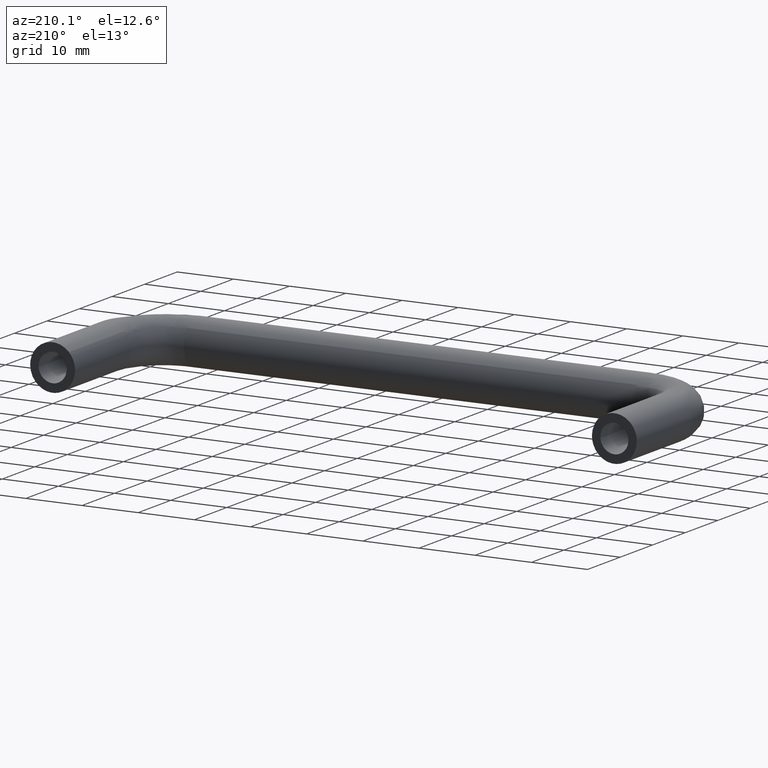
[diagram: clean part render]
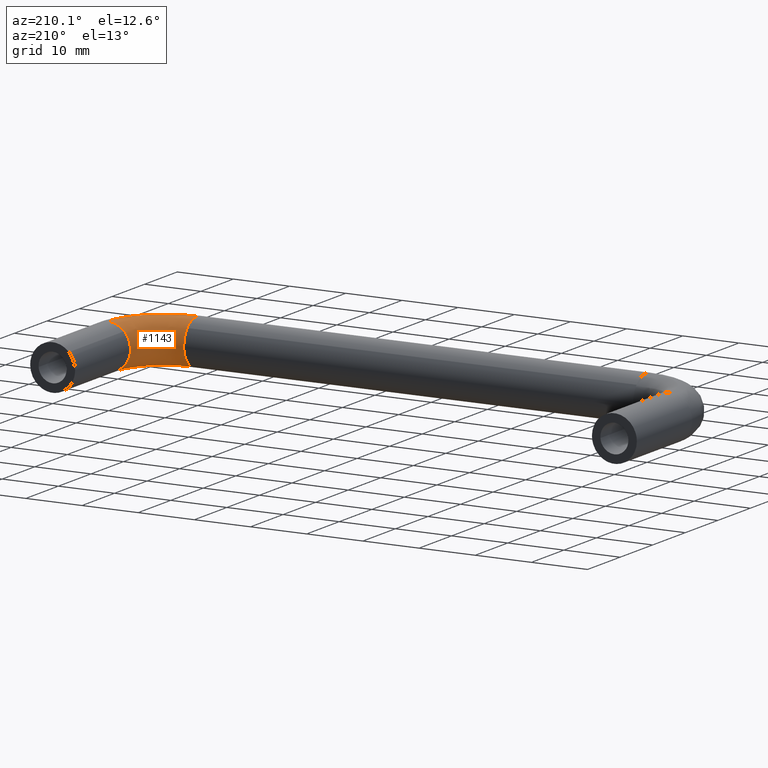
[diagram: same view with one face highlighted and labeled with its STEP entity id]
A machine part, auxiliary view. The second image highlights one B-rep face of the part: STEP entity #1143.
In plain terms, the highlighted face is a freeform B-spline surface patch.
Its self-contained STEP definition (entity closure, byte-faithful):
#469=CARTESIAN_POINT('',(99.899479618209057,-16.999999999993349,-3.998736757132757));
#470=VERTEX_POINT('',#469);
#486=CARTESIAN_POINT('',(96.0,-17.0,0.0));
#487=VERTEX_POINT('',#486);
#488=CARTESIAN_POINT('',(99.899479618209057,-16.999999999993356,-3.998736757132757));
#489=CARTESIAN_POINT('',(96.0,-17.0,-3.900711504688282));
#490=CARTESIAN_POINT('',(96.0,-17.0,0.0));
#498=(BOUNDED_CURVE()B_SPLINE_CURVE(2,(#488,#489,#490),.UNSPECIFIED.,.F.,.U.)B_SPLINE_CURVE_WITH_KNOTS((3,3),(0.254420108231731,0.500000000000000),.UNSPECIFIED.)CURVE()GEOMETRIC_REPRESENTATION_ITEM()RATIONAL_B_SPLINE_CURVE((0.989826157678098,0.712285260096530,1.0))REPRESENTATION_ITEM(''));
#499=EDGE_CURVE('',#470,#487,#498,.T.);
#501=CARTESIAN_POINT('',(97.098502148308370,-17.000000000000011,2.753417915360570));
#502=VERTEX_POINT('',#501);
#503=CARTESIAN_POINT('',(96.0,-17.0,0.0));
#504=CARTESIAN_POINT('',(96.000000000000014,-17.0,1.595837564795785));
#505=CARTESIAN_POINT('',(97.098502148308370,-17.000000000000011,2.753417915360570));
#513=(BOUNDED_CURVE()B_SPLINE_CURVE(2,(#503,#504,#505),.UNSPECIFIED.,.F.,.U.)B_SPLINE_CURVE_WITH_KNOTS((3,3),(0.500000000000000,0.621049486358276),.UNSPECIFIED.)CURVE()GEOMETRIC_REPRESENTATION_ITEM()RATIONAL_B_SPLINE_CURVE((1.0,0.858181705219238,0.853699664353818))REPRESENTATION_ITEM(''));
#514=EDGE_CURVE('',#487,#502,#513,.T.);
#586=CARTESIAN_POINT('',(100.100520386068500,-17.000000001000490,3.998736757025227));
#587=VERTEX_POINT('',#586);
#588=CARTESIAN_POINT('',(97.098502148308370,-17.000000000000007,2.753417915360570));
#589=CARTESIAN_POINT('',(98.281463743458758,-16.999999999999996,4.000000000000001));
#590=CARTESIAN_POINT('',(100.0,-17.0,4.0));
#591=CARTESIAN_POINT('',(100.050268132790730,-16.999999999999996,4.000000000000001));
#592=CARTESIAN_POINT('',(100.100520386068520,-17.000000001000494,3.998736757025227));
#600=(BOUNDED_CURVE()B_SPLINE_CURVE(2,(#588,#589,#590,#591,#592),.UNSPECIFIED.,.F.,.U.)B_SPLINE_CURVE_WITH_KNOTS((3,2,3),(0.621049486358275,0.750000000000000,0.754420108606093),.UNSPECIFIED.)CURVE()GEOMETRIC_REPRESENTATION_ITEM()RATIONAL_B_SPLINE_CURVE((0.853699664353818,0.848925075967308,1.0,0.994821520651426,0.989826156831933))REPRESENTATION_ITEM(''));
#601=EDGE_CURVE('',#502,#587,#600,.T.);
#732=CARTESIAN_POINT('',(90.0,-24.050890144235758,2.702360275506146));
#733=VERTEX_POINT('',#732);
#739=CARTESIAN_POINT('',(90.0,-23.0,0.0));
#740=VERTEX_POINT('',#739);
#741=CARTESIAN_POINT('',(90.0,-23.0,0.0));
#742=CARTESIAN_POINT('',(89.999999999999986,-22.999999999999993,1.555514060871604));
#743=CARTESIAN_POINT('',(90.0,-24.050890144235751,2.702360275506146));
#751=(BOUNDED_CURVE()B_SPLINE_CURVE(2,(#741,#742,#743),.UNSPECIFIED.,.F.,.U.)B_SPLINE_CURVE_WITH_KNOTS((3,3),(0.500000000000000,0.618415152269411),.UNSPECIFIED.)CURVE()GEOMETRIC_REPRESENTATION_ITEM()RATIONAL_B_SPLINE_CURVE((1.0,0.861268019582109,0.853959787850790))REPRESENTATION_ITEM(''));
#752=EDGE_CURVE('',#740,#733,#751,.T.);
#754=CARTESIAN_POINT('',(89.999988457094148,-26.899482878654041,-3.998736839091613));
#755=VERTEX_POINT('',#754);
#756=CARTESIAN_POINT('',(89.999988457094148,-26.899482878654041,-3.998736839091613));
#757=CARTESIAN_POINT('',(89.999994228547067,-23.000000000000018,-3.900714686229152));
#758=CARTESIAN_POINT('',(90.0,-23.0,0.0));
#766=(BOUNDED_CURVE()B_SPLINE_CURVE(2,(#756,#757,#758),.UNSPECIFIED.,.F.,.U.)B_SPLINE_CURVE_WITH_KNOTS((3,3),(0.254419965559188,0.500000000000000),.UNSPECIFIED.)CURVE()GEOMETRIC_REPRESENTATION_ITEM()RATIONAL_B_SPLINE_CURVE((0.989826480159624,0.712285092945249,1.0))REPRESENTATION_ITEM(''));
#767=EDGE_CURVE('',#755,#740,#766,.T.);
#801=CARTESIAN_POINT('',(90.000000000928935,-27.100520385913359,3.998736757029128));
#802=VERTEX_POINT('',#801);
#816=CARTESIAN_POINT('',(90.0,-24.050890144235755,2.702360275506146));
#817=CARTESIAN_POINT('',(90.0,-25.239956977990349,4.000000000000000));
#818=CARTESIAN_POINT('',(90.0,-27.0,4.0));
#819=CARTESIAN_POINT('',(90.0,-27.050268132635487,4.0));
#820=CARTESIAN_POINT('',(90.000000000928935,-27.100520385913359,3.998736757029128));
#828=(BOUNDED_CURVE()B_SPLINE_CURVE(2,(#816,#817,#818,#819,#820),.UNSPECIFIED.,.F.,.U.)B_SPLINE_CURVE_WITH_KNOTS((3,2,3),(0.618415152269411,0.750000000000000,0.754420108592512),.UNSPECIFIED.)CURVE()GEOMETRIC_REPRESENTATION_ITEM()RATIONAL_B_SPLINE_CURVE((0.853959787850789,0.845838761604440,1.0,0.994821520667336,0.989826156862628))REPRESENTATION_ITEM(''));
#829=EDGE_CURVE('',#733,#802,#828,.T.);
#1086=CARTESIAN_POINT('',(89.295733748910450,-27.075937724608810,3.998736757133198));
#1087=CARTESIAN_POINT('',(100.881653024987330,-27.885745422611969,3.998736757133197));
#1088=CARTESIAN_POINT('',(100.076201824617510,-16.299522468459159,3.998736757133198));
#1089=CARTESIAN_POINT('',(89.574548625629262,-23.086933097215113,4.099257138906549));
#1090=CARTESIAN_POINT('',(96.573670437485504,-23.576142678901611,4.099257138906549));
#1091=CARTESIAN_POINT('',(96.087092641579915,-16.576837413337916,4.099257138906550));
#1092=CARTESIAN_POINT('',(89.581557483564708,-22.986657362053005,0.100520381773351));
#1093=CARTESIAN_POINT('',(96.465376223419995,-23.467807737293729,0.100520381773351));
#1094=CARTESIAN_POINT('',(95.986814278094400,-16.583808565935271,0.100520381773351));
#1095=CARTESIAN_POINT('',(89.588566341500112,-22.886381626890884,-3.898216375359846));
#1096=CARTESIAN_POINT('',(96.357082009354500,-23.359472795685868,-3.898216375359847));
#1097=CARTESIAN_POINT('',(95.886535914608928,-16.590779718532652,-3.898216375359846));
#1098=CARTESIAN_POINT('',(89.309751464781300,-26.875386254284592,-3.998736757133198));
#1099=CARTESIAN_POINT('',(100.665064596856300,-27.669075539396250,-3.998736757133197));
#1100=CARTESIAN_POINT('',(99.875645097646554,-16.313464773653887,-3.998736757133198));
#1108=(BOUNDED_SURFACE()B_SPLINE_SURFACE(2,2,((#1086,#1089,#1092,#1095,#1098),(#1087,#1090,#1093,#1096,#1099),(#1088,#1091,#1094,#1097,#1100)),.UNSPECIFIED.,.F.,.F.,.U.)B_SPLINE_SURFACE_WITH_KNOTS((3,3),(3,2,3),(0.0,18.406908413289830),(0.0,6.627416997969537,13.254833995939080),.UNSPECIFIED.)GEOMETRIC_REPRESENTATION_ITEM()RATIONAL_B_SPLINE_SURFACE(((0.916719858609290,0.648218828471002,0.916719858609290,0.648218828471002,0.916719858609290),(0.603246569601310,0.426559740092609,0.603246569601310,0.426559740092609,0.603246569601310),(0.921825372319266,0.651828971836767,0.921825372319266,0.651828971836767,0.921825372319266)))REPRESENTATION_ITEM('')SURFACE());
#1109=ORIENTED_EDGE('',*,*,#601,.F.);
#1110=ORIENTED_EDGE('',*,*,#514,.F.);
#1111=ORIENTED_EDGE('',*,*,#499,.F.);
#1112=CARTESIAN_POINT('',(89.999988457094148,-26.899482878654037,-3.998736839091613));
#1113=CARTESIAN_POINT('',(99.899479618229250,-26.899492791355812,-3.998736798112186));
#1114=CARTESIAN_POINT('',(99.899479618209057,-16.999999999993349,-3.998736757132757));
#1122=(BOUNDED_CURVE()B_SPLINE_CURVE(2,(#1112,#1113,#1114),.UNSPECIFIED.,.F.,.U.)B_SPLINE_CURVE_WITH_KNOTS((3,3),(-1.733069079221911,-0.253787686440282),.UNSPECIFIED.)CURVE()GEOMETRIC_REPRESENTATION_ITEM()RATIONAL_B_SPLINE_CURVE((0.889551596146883,0.630646629591462,0.894193517001425))REPRESENTATION_ITEM(''));
#1123=EDGE_CURVE('',#755,#470,#1122,.T.);
#1124=ORIENTED_EDGE('',*,*,#1123,.F.);
#1125=ORIENTED_EDGE('',*,*,#767,.T.);
#1126=ORIENTED_EDGE('',*,*,#752,.T.);
#1127=ORIENTED_EDGE('',*,*,#829,.T.);
#1128=CARTESIAN_POINT('',(90.000000000928935,-27.100520385913367,3.998736757029127));
#1129=CARTESIAN_POINT('',(100.100520379772320,-27.100520379915505,3.998736757133198));
#1130=CARTESIAN_POINT('',(100.100520386068520,-17.000000001000490,3.998736757025227));
#1138=(BOUNDED_CURVE()B_SPLINE_CURVE(2,(#1128,#1129,#1130),.UNSPECIFIED.,.F.,.U.)B_SPLINE_CURVE_WITH_KNOTS((3,3),(-1.733067862541822,-0.253787686649453),.UNSPECIFIED.)CURVE()GEOMETRIC_REPRESENTATION_ITEM()RATIONAL_B_SPLINE_CURVE((0.889551170258668,0.630646846390245,0.894193516926894))REPRESENTATION_ITEM(''));
#1139=EDGE_CURVE('',#802,#587,#1138,.T.);
#1140=ORIENTED_EDGE('',*,*,#1139,.T.);
#1141=EDGE_LOOP('',(#1109,#1110,#1111,#1124,#1125,#1126,#1127,#1140));
#1142=FACE_OUTER_BOUND('',#1141,.T.);
#1143=ADVANCED_FACE('',(#1142),#1108,.T.);